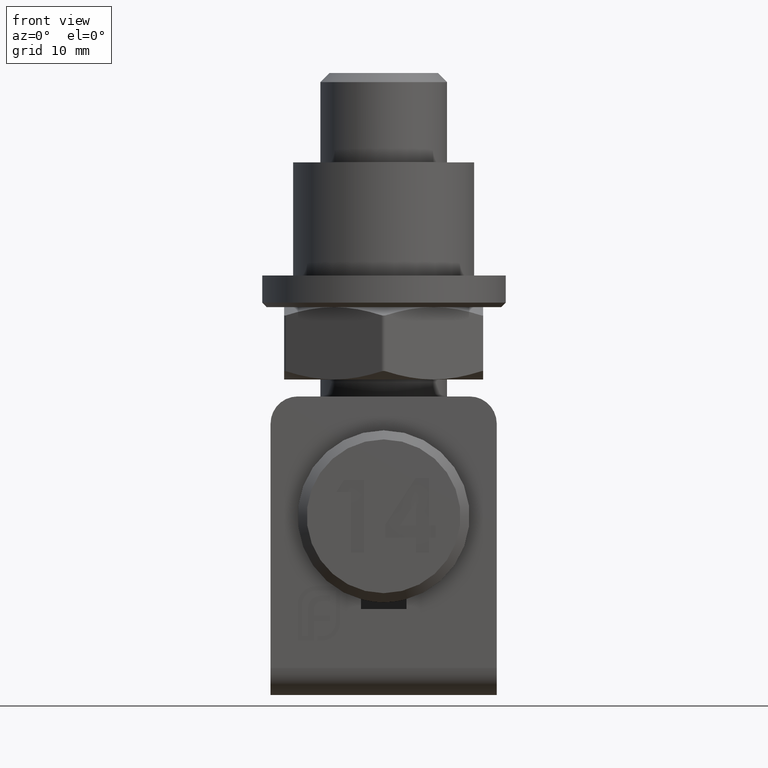
[diagram: clean part render]
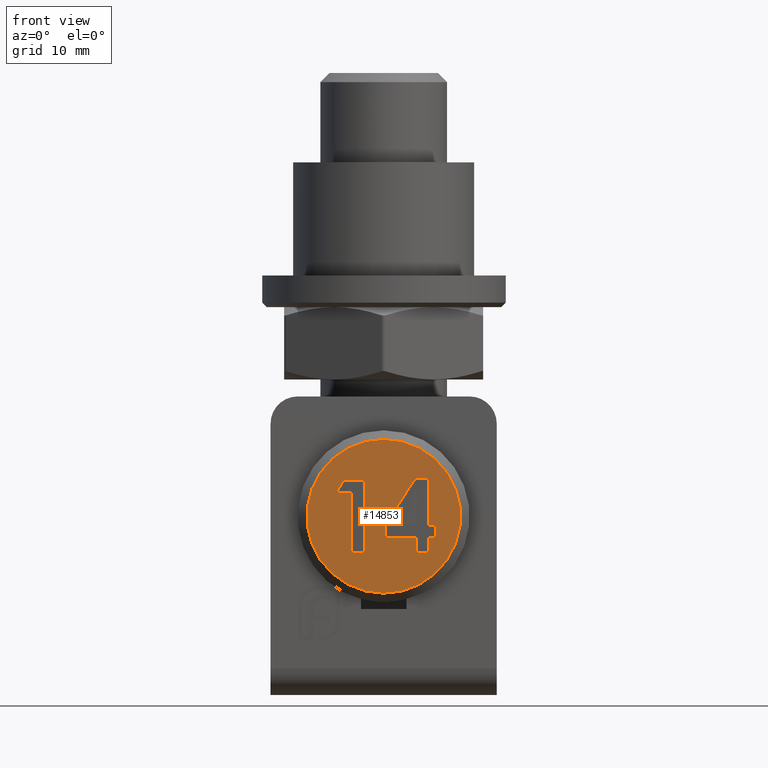
[diagram: same view with one face highlighted and labeled with its STEP entity id]
A machine part, front view. The second image highlights one B-rep face of the part: STEP entity #14853.
In plain terms, the highlighted planar face has unit normal (0, 1, 0).
Its self-contained STEP definition (entity closure, byte-faithful):
#258 = ORIENTED_EDGE ( 'NONE', *, *, #10860, .T. ) ;
#514 = CARTESIAN_POINT ( 'NONE',  ( -5.025641025641021109, 0.000000000000000000, 1.025641025641023996 ) ) ;
#587 = CARTESIAN_POINT ( 'NONE',  ( -0.2051282051282052876, 0.000000000000000000, 0.9054487179487161752 ) ) ;
#648 = LINE ( 'NONE', #1366, #17521 ) ;
#1244 = VERTEX_POINT ( 'NONE', #4813 ) ;
#1258 = EDGE_CURVE ( 'NONE', #12505, #12676, #648, .T. ) ;
#1366 = CARTESIAN_POINT ( 'NONE',  ( -0.2051282051282052876, 0.000000000000000000, 0.9054487179487161752 ) ) ;
#1456 = DIRECTION ( 'NONE',  ( 2.137108174903138078E-47, -1.000000000000000000, 1.646110961499490869E-31 ) ) ;
#1582 = LINE ( 'NONE', #11426, #8713 ) ;
#1854 = DIRECTION ( 'NONE',  ( 0.000000000000000000, -1.646110961499490869E-31, 1.000000000000000000 ) ) ;
#1982 = EDGE_CURVE ( 'NONE', #15781, #16070, #3443, .T. ) ;
#1998 = VECTOR ( 'NONE', #5970, 1000.000000000000000 ) ;
#2114 = CARTESIAN_POINT ( 'NONE',  ( 5.230769230769236167, 0.000000000000000000, -2.666666666666667851 ) ) ;
#2600 = PLANE ( 'NONE',  #3406 ) ;
#2915 = CARTESIAN_POINT ( 'NONE',  ( -5.025641025641021109, 0.000000000000000000, -4.205128205128207064 ) ) ;
#3086 = FACE_BOUND ( 'NONE', #7405, .T. ) ;
#3099 = CARTESIAN_POINT ( 'NONE',  ( -5.025641025641021109, 0.000000000000000000, 1.025641025641023996 ) ) ;
#3357 = CARTESIAN_POINT ( 'NONE',  ( -3.589743589743605856, 0.000000000000000000, 3.999999999999998224 ) ) ;
#3406 = AXIS2_PLACEMENT_3D ( 'NONE', #19439, #4684, #21080 ) ;
#3443 = LINE ( 'NONE', #15329, #3975 ) ;
#3560 = DIRECTION ( 'NONE',  ( -0.5408597775034188482, 3.026587591118668149E-17, -0.8411127754819517355 ) ) ;
#3608 = EDGE_CURVE ( 'NONE', #12095, #13650, #16561, .T. ) ;
#3685 = EDGE_CURVE ( 'NONE', #19929, #9052, #15270, .T. ) ;
#3901 = LINE ( 'NONE', #19560, #17931 ) ;
#3917 = CARTESIAN_POINT ( 'NONE',  ( 2.153846153846154632, 0.000000000000000000, -4.000000000000001776 ) ) ;
#3975 = VECTOR ( 'NONE', #11545, 1000.000000000000000 ) ;
#4012 = DIRECTION ( 'NONE',  ( 1.000000000000000000, -5.595882180570346659E-17, 0.000000000000000000 ) ) ;
#4179 = CARTESIAN_POINT ( 'NONE',  ( 5.230769230769236167, 0.000000000000000000, -2.666666666666667851 ) ) ;
#4302 = LINE ( 'NONE', #18539, #12702 ) ;
#4541 = CARTESIAN_POINT ( 'NONE',  ( -0.2051282051282052876, 0.000000000000000000, 2.358974358974356811 ) ) ;
#4684 = DIRECTION ( 'NONE',  ( -2.137108174903138078E-47, 1.000000000000000000, 1.646110961499490869E-31 ) ) ;
#4804 = EDGE_CURVE ( 'NONE', #12676, #12095, #5303, .T. ) ;
#4813 = CARTESIAN_POINT ( 'NONE',  ( 3.589743589743575214, 0.000000000000000000, -2.666666666666668739 ) ) ;
#4871 = EDGE_CURVE ( 'NONE', #16070, #12505, #4302, .T. ) ;
#5065 = CARTESIAN_POINT ( 'NONE',  ( -3.589743589743590313, 0.000000000000000000, 2.358974358974356811 ) ) ;
#5098 = CARTESIAN_POINT ( 'NONE',  ( 0.000000000000000000, -1.399194317274565574E-30, 8.499999999999989342 ) ) ;
#5125 = FACE_BOUND ( 'NONE', #21124, .T. ) ;
#5237 = CARTESIAN_POINT ( 'NONE',  ( -3.528846153846154188, 0.000000000000000000, -4.205128205128207064 ) ) ;
#5303 = LINE ( 'NONE', #18906, #14470 ) ;
#5336 = ORIENTED_EDGE ( 'NONE', *, *, #14055, .T. ) ;
#5970 = DIRECTION ( 'NONE',  ( 1.000000000000000000, -5.595882180570346659E-17, 0.000000000000000000 ) ) ;
#6242 = ORIENTED_EDGE ( 'NONE', *, *, #16925, .T. ) ;
#6393 = DIRECTION ( 'NONE',  ( 0.000000000000000000, -1.646110961499490869E-31, 1.000000000000000000 ) ) ;
#6521 = VERTEX_POINT ( 'NONE', #14495 ) ;
#6692 = CARTESIAN_POINT ( 'NONE',  ( -5.743589743589739172, 0.000000000000000000, 2.358974358974356811 ) ) ;
#6721 = DIRECTION ( 'NONE',  ( 1.000000000000000000, -5.595882180570346659E-17, 0.000000000000000000 ) ) ;
#6838 = CARTESIAN_POINT ( 'NONE',  ( -5.025641025641021109, 0.000000000000000000, 2.358974358974356811 ) ) ;
#7121 = VECTOR ( 'NONE', #9814, 1000.000000000000000 ) ;
#7187 = CARTESIAN_POINT ( 'NONE',  ( 3.589743589743575214, 0.000000000000000000, -2.666666666666668739 ) ) ;
#7335 = CARTESIAN_POINT ( 'NONE',  ( -5.743589743589739172, 0.000000000000000000, 1.025641025641023996 ) ) ;
#7405 = EDGE_LOOP ( 'NONE', ( #12929, #17829, #18857, #17064, #16245, #9967 ) ) ;
#7417 = ORIENTED_EDGE ( 'NONE', *, *, #9964, .T. ) ;
#7449 = VECTOR ( 'NONE', #12803, 1000.000000000000000 ) ;
#7594 = CARTESIAN_POINT ( 'NONE',  ( 4.373397435897440566, 0.000000000000000000, -4.000000000000001776 ) ) ;
#7623 = EDGE_CURVE ( 'NONE', #9152, #1244, #20419, .T. ) ;
#7647 = FACE_OUTER_BOUND ( 'NONE', #17786, .T. ) ;
#7846 = LINE ( 'NONE', #12321, #1998 ) ;
#8143 = VECTOR ( 'NONE', #11970, 1000.000000000000000 ) ;
#8263 = CARTESIAN_POINT ( 'NONE',  ( -5.025641025641021109, 0.000000000000000000, 3.999999999999998224 ) ) ;
#8328 = VECTOR ( 'NONE', #20331, 1000.000000000000000 ) ;
#8361 = DIRECTION ( 'NONE',  ( 0.000000000000000000, -1.646110961499490869E-31, 1.000000000000000000 ) ) ;
#8517 = DIRECTION ( 'NONE',  ( -1.000000000000000000, 5.595882180570346659E-17, 0.000000000000000000 ) ) ;
#8557 = EDGE_CURVE ( 'NONE', #1244, #19215, #9418, .T. ) ;
#8622 = ORIENTED_EDGE ( 'NONE', *, *, #4804, .T. ) ;
#8713 = VECTOR ( 'NONE', #8361, 1000.000000000000000 ) ;
#8725 = LINE ( 'NONE', #7594, #19466 ) ;
#9052 = VERTEX_POINT ( 'NONE', #6838 ) ;
#9068 = VERTEX_POINT ( 'NONE', #8263 ) ;
#9152 = VERTEX_POINT ( 'NONE', #17938 ) ;
#9418 = LINE ( 'NONE', #7187, #20686 ) ;
#9453 = DIRECTION ( 'NONE',  ( -1.000000000000000000, 5.595882180570346659E-17, 0.000000000000000000 ) ) ;
#9573 = CARTESIAN_POINT ( 'NONE',  ( 0.000000000000000000, 0.000000000000000000, 0.000000000000000000 ) ) ;
#9634 = VECTOR ( 'NONE', #16269, 1000.000000000000000 ) ;
#9674 = ORIENTED_EDGE ( 'NONE', *, *, #1258, .T. ) ;
#9814 = DIRECTION ( 'NONE',  ( 0.000000000000000000, 1.646110961499490869E-31, -1.000000000000000000 ) ) ;
#9964 = EDGE_CURVE ( 'NONE', #20945, #15781, #13007, .T. ) ;
#9967 = ORIENTED_EDGE ( 'NONE', *, *, #8557, .T. ) ;
#10280 = VECTOR ( 'NONE', #3560, 1000.000000000000114 ) ;
#10394 = VERTEX_POINT ( 'NONE', #5098 ) ;
#10409 = VECTOR ( 'NONE', #1854, 1000.000000000000000 ) ;
#10860 = EDGE_CURVE ( 'NONE', #13650, #6521, #20228, .T. ) ;
#11013 = CIRCLE ( 'NONE', #21208, 8.499999999999989342 ) ;
#11426 = CARTESIAN_POINT ( 'NONE',  ( -5.025641025641021109, 0.000000000000000000, 2.358974358974356811 ) ) ;
#11545 = DIRECTION ( 'NONE',  ( 1.000000000000000000, -5.595882180570346659E-17, 0.000000000000000000 ) ) ;
#11647 = ORIENTED_EDGE ( 'NONE', *, *, #14021, .T. ) ;
#11970 = DIRECTION ( 'NONE',  ( 0.000000000000000000, 1.646110961499490869E-31, -1.000000000000000000 ) ) ;
#12095 = VERTEX_POINT ( 'NONE', #16706 ) ;
#12321 = CARTESIAN_POINT ( 'NONE',  ( 2.153846153846139089, 0.000000000000000000, 3.999999999999998224 ) ) ;
#12468 = CARTESIAN_POINT ( 'NONE',  ( 2.153846153846139089, 0.000000000000000000, 3.999999999999998224 ) ) ;
#12505 = VERTEX_POINT ( 'NONE', #587 ) ;
#12572 = ORIENTED_EDGE ( 'NONE', *, *, #1982, .T. ) ;
#12676 = VERTEX_POINT ( 'NONE', #5237 ) ;
#12702 = VECTOR ( 'NONE', #14160, 1000.000000000000000 ) ;
#12803 = DIRECTION ( 'NONE',  ( -1.000000000000000000, 5.595882180570349124E-17, 0.000000000000000000 ) ) ;
#12929 = ORIENTED_EDGE ( 'NONE', *, *, #13332, .T. ) ;
#13007 = LINE ( 'NONE', #3357, #7121 ) ;
#13065 = VERTEX_POINT ( 'NONE', #12468 ) ;
#13332 = EDGE_CURVE ( 'NONE', #19215, #14074, #16689, .T. ) ;
#13445 = VERTEX_POINT ( 'NONE', #3917 ) ;
#13650 = VERTEX_POINT ( 'NONE', #514 ) ;
#13712 = CARTESIAN_POINT ( 'NONE',  ( -3.589743589743605856, 0.000000000000000000, 3.999999999999998224 ) ) ;
#13773 = EDGE_CURVE ( 'NONE', #14074, #13445, #8725, .T. ) ;
#13808 = ORIENTED_EDGE ( 'NONE', *, *, #3608, .T. ) ;
#14021 = EDGE_CURVE ( 'NONE', #9052, #9068, #1582, .T. ) ;
#14055 = EDGE_CURVE ( 'NONE', #9068, #20945, #3901, .T. ) ;
#14074 = VERTEX_POINT ( 'NONE', #14588 ) ;
#14160 = DIRECTION ( 'NONE',  ( 0.000000000000000000, 1.646110961499490869E-31, -1.000000000000000000 ) ) ;
#14213 = ORIENTED_EDGE ( 'NONE', *, *, #16486, .T. ) ;
#14470 = VECTOR ( 'NONE', #8517, 1000.000000000000000 ) ;
#14495 = CARTESIAN_POINT ( 'NONE',  ( -5.743589743589739172, 0.000000000000000000, 1.025641025641023996 ) ) ;
#14588 = CARTESIAN_POINT ( 'NONE',  ( 4.373397435897440566, 0.000000000000000000, -4.000000000000001776 ) ) ;
#14853 = ADVANCED_FACE ( 'NONE', ( #5125, #7647, #3086 ), #2600, .F. ) ;
#14858 = DIRECTION ( 'NONE',  ( 0.000000000000000000, -1.646110961499490869E-31, 1.000000000000000000 ) ) ;
#15270 = LINE ( 'NONE', #6692, #9634 ) ;
#15329 = CARTESIAN_POINT ( 'NONE',  ( -3.589743589743590313, 0.000000000000000000, 2.358974358974356811 ) ) ;
#15781 = VERTEX_POINT ( 'NONE', #5065 ) ;
#15915 = CARTESIAN_POINT ( 'NONE',  ( 3.589743589743575214, 0.000000000000000000, 3.999999999999998224 ) ) ;
#16055 = VECTOR ( 'NONE', #14858, 1000.000000000000000 ) ;
#16070 = VERTEX_POINT ( 'NONE', #4541 ) ;
#16245 = ORIENTED_EDGE ( 'NONE', *, *, #7623, .T. ) ;
#16269 = DIRECTION ( 'NONE',  ( 1.000000000000000000, -5.595882180570349124E-17, 0.000000000000000000 ) ) ;
#16434 = EDGE_CURVE ( 'NONE', #13065, #9152, #7846, .T. ) ;
#16486 = EDGE_CURVE ( 'NONE', #10394, #10394, #11013, .T. ) ;
#16561 = LINE ( 'NONE', #2915, #10409 ) ;
#16689 = LINE ( 'NONE', #2114, #10280 ) ;
#16706 = CARTESIAN_POINT ( 'NONE',  ( -5.025641025641021109, 0.000000000000000000, -4.205128205128207064 ) ) ;
#16925 = EDGE_CURVE ( 'NONE', #6521, #19929, #17015, .T. ) ;
#17015 = LINE ( 'NONE', #7335, #8328 ) ;
#17064 = ORIENTED_EDGE ( 'NONE', *, *, #16434, .T. ) ;
#17521 = VECTOR ( 'NONE', #17882, 1000.000000000000000 ) ;
#17786 = EDGE_LOOP ( 'NONE', ( #14213 ) ) ;
#17829 = ORIENTED_EDGE ( 'NONE', *, *, #13773, .T. ) ;
#17882 = DIRECTION ( 'NONE',  ( -0.5452008499230921457, 3.050879720916483476E-17, -0.8383054534256222379 ) ) ;
#17931 = VECTOR ( 'NONE', #6721, 1000.000000000000000 ) ;
#17938 = CARTESIAN_POINT ( 'NONE',  ( 3.589743589743575214, 0.000000000000000000, 3.999999999999998224 ) ) ;
#18362 = LINE ( 'NONE', #19700, #16055 ) ;
#18539 = CARTESIAN_POINT ( 'NONE',  ( -0.2051282051282052876, 0.000000000000000000, 2.358974358974356811 ) ) ;
#18857 = ORIENTED_EDGE ( 'NONE', *, *, #21184, .T. ) ;
#18906 = CARTESIAN_POINT ( 'NONE',  ( -3.528846153846154188, 0.000000000000000000, -4.205128205128207064 ) ) ;
#19215 = VERTEX_POINT ( 'NONE', #4179 ) ;
#19400 = ORIENTED_EDGE ( 'NONE', *, *, #4871, .T. ) ;
#19439 = CARTESIAN_POINT ( 'NONE',  ( 0.000000000000000000, 0.000000000000000000, 0.000000000000000000 ) ) ;
#19466 = VECTOR ( 'NONE', #9453, 1000.000000000000000 ) ;
#19560 = CARTESIAN_POINT ( 'NONE',  ( -5.025641025641021109, 0.000000000000000000, 3.999999999999998224 ) ) ;
#19619 = ORIENTED_EDGE ( 'NONE', *, *, #3685, .T. ) ;
#19700 = CARTESIAN_POINT ( 'NONE',  ( 2.153846153846154632, 0.000000000000000000, -4.000000000000001776 ) ) ;
#19929 = VERTEX_POINT ( 'NONE', #21201 ) ;
#20228 = LINE ( 'NONE', #3099, #7449 ) ;
#20331 = DIRECTION ( 'NONE',  ( 0.000000000000000000, -1.646110961499490869E-31, 1.000000000000000000 ) ) ;
#20419 = LINE ( 'NONE', #15915, #8143 ) ;
#20686 = VECTOR ( 'NONE', #4012, 1000.000000000000000 ) ;
#20945 = VERTEX_POINT ( 'NONE', #13712 ) ;
#21080 = DIRECTION ( 'NONE',  ( 0.000000000000000000, -1.646110961499490869E-31, 1.000000000000000000 ) ) ;
#21124 = EDGE_LOOP ( 'NONE', ( #9674, #8622, #13808, #258, #6242, #19619, #11647, #5336, #7417, #12572, #19400 ) ) ;
#21184 = EDGE_CURVE ( 'NONE', #13445, #13065, #18362, .T. ) ;
#21201 = CARTESIAN_POINT ( 'NONE',  ( -5.743589743589739172, 0.000000000000000000, 2.358974358974356811 ) ) ;
#21208 = AXIS2_PLACEMENT_3D ( 'NONE', #9573, #1456, #6393 ) ;